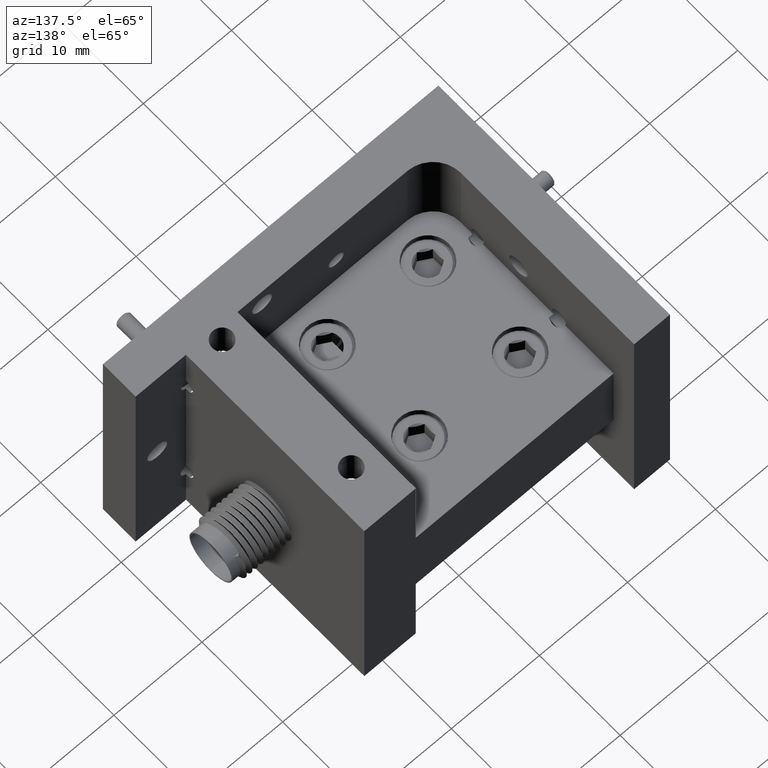
[diagram: clean part render]
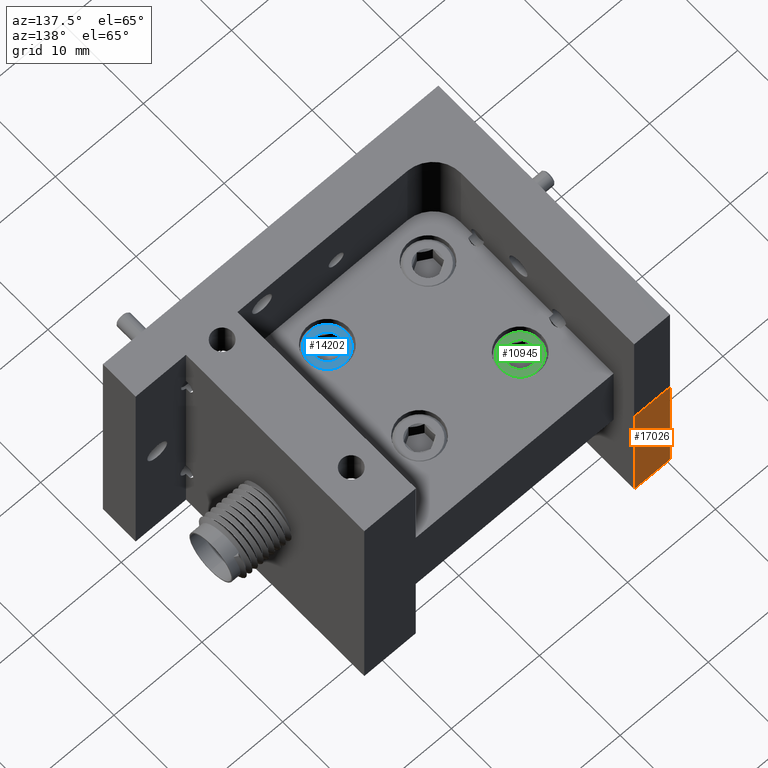
[diagram: same view with three faces highlighted in distinct colors, each labeled with its STEP entity id]
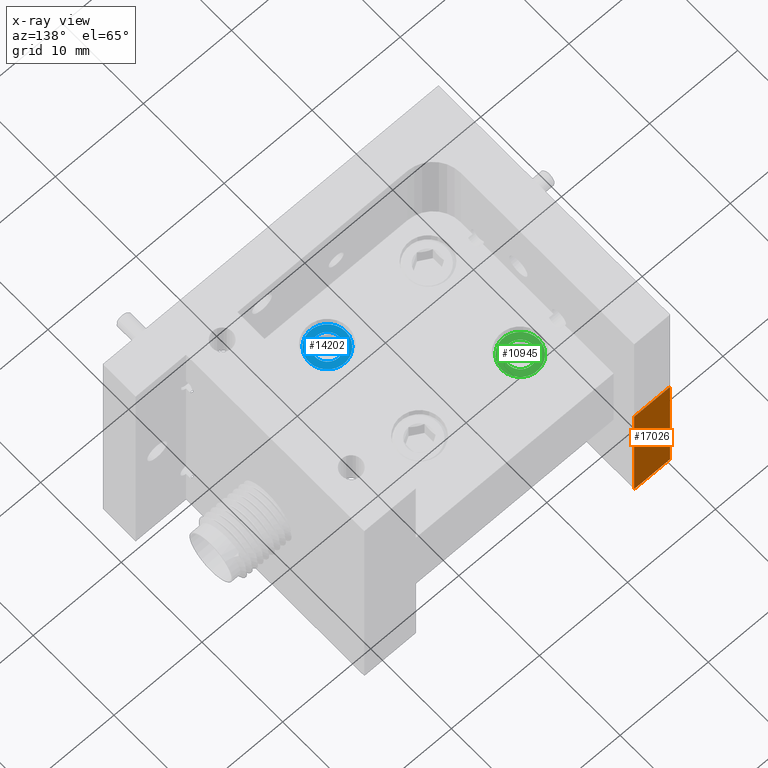
[diagram: x-ray of the same camera — body ghosted, the three highlighted faces saturated]
A machine part, auxiliary view with three faces highlighted in distinct colors.
The next image is the same camera in x-ray (body ghosted, the three faces saturated) — at least one of them is partly hidden behind the body in this view.
Their STEP definitions:

[orange] entity #17026 — the highlighted planar face has unit normal (0, -1, 0).
#613 = ORIENTED_EDGE ( 'NONE', *, *, #17693, .T. ) ;
#712 = ORIENTED_EDGE ( 'NONE', *, *, #8812, .T. ) ;
#1538 = LINE ( 'NONE', #15820, #11156 ) ;
#1667 = CARTESIAN_POINT ( 'NONE',  ( 0.1600000000000000000, 0.5649999999999999500, -0.5649999999999999500 ) ) ;
#1675 = LINE ( 'NONE', #1667, #3570 ) ;
#2042 = DIRECTION ( 'NONE',  ( 0.0000000000000000000, -1.000000000000000000, 0.0000000000000000000 ) ) ;
#2222 = LINE ( 'NONE', #14574, #17602 ) ;
#2614 = CARTESIAN_POINT ( 'NONE',  ( 0.0000000000000000000, 0.5649999999999999500, -0.5649999999999999500 ) ) ;
#2742 = CARTESIAN_POINT ( 'NONE',  ( 0.0000000000000000000, 0.5649999999999999500, 0.0000000000000000000 ) ) ;
#3570 = VECTOR ( 'NONE', #10038, 39.37007874015748100 ) ;
#3769 = DIRECTION ( 'NONE',  ( 0.0000000000000000000, 0.0000000000000000000, 1.000000000000000000 ) ) ;
#4166 = FACE_OUTER_BOUND ( 'NONE', #7511, .T. ) ;
#4492 = ORIENTED_EDGE ( 'NONE', *, *, #14460, .F. ) ;
#4577 = VECTOR ( 'NONE', #10571, 39.37007874015748100 ) ;
#4983 = DIRECTION ( 'NONE',  ( 0.0000000000000000000, -0.0000000000000000000, -1.000000000000000000 ) ) ;
#7158 = LINE ( 'NONE', #13269, #4577 ) ;
#7214 = PLANE ( 'NONE',  #14373 ) ;
#7511 = EDGE_LOOP ( 'NONE', ( #712, #8445, #4492, #613 ) ) ;
#8142 = CARTESIAN_POINT ( 'NONE',  ( 0.1600000000000000000, 0.5649999999999999500, 0.0000000000000000000 ) ) ;
#8290 = VERTEX_POINT ( 'NONE', #2614 ) ;
#8445 = ORIENTED_EDGE ( 'NONE', *, *, #11505, .F. ) ;
#8812 = EDGE_CURVE ( 'NONE', #8290, #14372, #2222, .T. ) ;
#9027 = VERTEX_POINT ( 'NONE', #8142 ) ;
#10038 = DIRECTION ( 'NONE',  ( 0.0000000000000000000, 0.0000000000000000000, 1.000000000000000000 ) ) ;
#10571 = DIRECTION ( 'NONE',  ( -1.000000000000000000, -0.0000000000000000000, -0.0000000000000000000 ) ) ;
#11156 = VECTOR ( 'NONE', #15652, 39.37007874015748100 ) ;
#11505 = EDGE_CURVE ( 'NONE', #9027, #14372, #1538, .T. ) ;
#12924 = CARTESIAN_POINT ( 'NONE',  ( 0.1600000000000000000, 0.5649999999999999500, -0.5649999999999999500 ) ) ;
#13269 = CARTESIAN_POINT ( 'NONE',  ( 0.1600000000000000000, 0.5649999999999999500, -0.5649999999999999500 ) ) ;
#14372 = VERTEX_POINT ( 'NONE', #2742 ) ;
#14373 = AXIS2_PLACEMENT_3D ( 'NONE', #12924, #2042, #4983 ) ;
#14460 = EDGE_CURVE ( 'NONE', #16141, #9027, #1675, .T. ) ;
#14574 = CARTESIAN_POINT ( 'NONE',  ( 0.0000000000000000000, 0.5649999999999999500, -0.5649999999999999500 ) ) ;
#15652 = DIRECTION ( 'NONE',  ( -1.000000000000000000, -0.0000000000000000000, -0.0000000000000000000 ) ) ;
#15820 = CARTESIAN_POINT ( 'NONE',  ( 0.1600000000000000000, 0.5649999999999999500, 0.0000000000000000000 ) ) ;
#16141 = VERTEX_POINT ( 'NONE', #16180 ) ;
#16180 = CARTESIAN_POINT ( 'NONE',  ( 0.1600000000000000000, 0.5649999999999999500, -0.5649999999999999500 ) ) ;
#17026 = ADVANCED_FACE ( 'NONE', ( #4166 ), #7214, .F. ) ;
#17602 = VECTOR ( 'NONE', #3769, 39.37007874015748100 ) ;
#17693 = EDGE_CURVE ( 'NONE', #16141, #8290, #7158, .T. ) ;

[blue] entity #14202 — the highlighted planar face has unit normal (-0, 0, 1).
#1467 = AXIS2_PLACEMENT_3D ( 'NONE', #7515, #10272, #15696 ) ;
#1649 = EDGE_CURVE ( 'NONE', #2693, #6087, #16755, .T. ) ;
#1759 = CIRCLE ( 'NONE', #13148, 0.05412658773652737800 ) ;
#1856 = EDGE_CURVE ( 'NONE', #5025, #6931, #7732, .T. ) ;
#2263 = ORIENTED_EDGE ( 'NONE', *, *, #1856, .T. ) ;
#2537 = VERTEX_POINT ( 'NONE', #13089 ) ;
#2693 = VERTEX_POINT ( 'NONE', #8595 ) ;
#2920 = DIRECTION ( 'NONE',  ( -2.623489575373747400E-031, 6.153879106841502400E-031, 1.000000000000000000 ) ) ;
#2936 = DIRECTION ( 'NONE',  ( 1.000000000000000000, 0.0000000000000000000, 0.0000000000000000000 ) ) ;
#3086 = CARTESIAN_POINT ( 'NONE',  ( 0.7849999999999999200, -0.2499999999999999200, 0.1619999999999999500 ) ) ;
#3259 = ORIENTED_EDGE ( 'NONE', *, *, #17547, .F. ) ;
#3368 = CARTESIAN_POINT ( 'NONE',  ( 0.7849999999999999200, -0.2499999999999999200, 0.1619999999999999500 ) ) ;
#3825 = AXIS2_PLACEMENT_3D ( 'NONE', #13114, #14484, #7401 ) ;
#4067 = DIRECTION ( 'NONE',  ( 1.000000000000000000, 0.0000000000000000000, 2.623489575373747400E-031 ) ) ;
#4383 = CARTESIAN_POINT ( 'NONE',  ( 0.7849999999999999200, -0.2499999999999999200, 0.1619999999999999500 ) ) ;
#4478 = FACE_BOUND ( 'NONE', #16747, .T. ) ;
#5025 = VERTEX_POINT ( 'NONE', #17529 ) ;
#5046 = AXIS2_PLACEMENT_3D ( 'NONE', #3368, #11546, #14234 ) ;
#5945 = EDGE_CURVE ( 'NONE', #14824, #14476, #8158, .T. ) ;
#6087 = VERTEX_POINT ( 'NONE', #10862 ) ;
#6169 = CARTESIAN_POINT ( 'NONE',  ( 0.7849999999999999200, -0.1958734122634725200, 0.1619999999999999500 ) ) ;
#6394 = VERTEX_POINT ( 'NONE', #6169 ) ;
#6698 = ORIENTED_EDGE ( 'NONE', *, *, #6849, .T. ) ;
#6849 = EDGE_CURVE ( 'NONE', #6931, #5025, #13262, .T. ) ;
#6931 = VERTEX_POINT ( 'NONE', #9980 ) ;
#7255 = DIRECTION ( 'NONE',  ( 1.000000000000000000, 0.0000000000000000000, 0.0000000000000000000 ) ) ;
#7401 = DIRECTION ( 'NONE',  ( 1.000000000000000000, 0.0000000000000000000, 0.0000000000000000000 ) ) ;
#7515 = CARTESIAN_POINT ( 'NONE',  ( 0.7849999999999999200, -0.2499999999999999200, 0.1619999999999999500 ) ) ;
#7732 = CIRCLE ( 'NONE', #5046, 0.08235000000000000700 ) ;
#7772 = EDGE_CURVE ( 'NONE', #14476, #2693, #12796, .T. ) ;
#7866 = FACE_OUTER_BOUND ( 'NONE', #14384, .T. ) ;
#7945 = CARTESIAN_POINT ( 'NONE',  ( 0.7849999999999999200, -0.2499999999999999200, 0.1619999999999999500 ) ) ;
#8158 = CIRCLE ( 'NONE', #11489, 0.05412658773652737800 ) ;
#8595 = CARTESIAN_POINT ( 'NONE',  ( 0.8391265877365273700, -0.2499999999999999200, 0.1619999999999999500 ) ) ;
#8730 = DIRECTION ( 'NONE',  ( -2.623489575373747400E-031, 6.153879106841502400E-031, 1.000000000000000000 ) ) ;
#9335 = DIRECTION ( 'NONE',  ( -2.623489575373747400E-031, 6.153879106841502400E-031, 1.000000000000000000 ) ) ;
#9451 = PLANE ( 'NONE',  #13215 ) ;
#9845 = DIRECTION ( 'NONE',  ( 1.000000000000000000, 0.0000000000000000000, 0.0000000000000000000 ) ) ;
#9948 = DIRECTION ( 'NONE',  ( 1.000000000000000000, 0.0000000000000000000, 0.0000000000000000000 ) ) ;
#9980 = CARTESIAN_POINT ( 'NONE',  ( 0.7026500000000000000, -0.2499999999999999200, 0.1619999999999999500 ) ) ;
#10000 = DIRECTION ( 'NONE',  ( -2.623489575373747400E-031, 6.153879106841502400E-031, 1.000000000000000000 ) ) ;
#10231 = CIRCLE ( 'NONE', #3825, 0.05412658773652737800 ) ;
#10268 = ORIENTED_EDGE ( 'NONE', *, *, #1649, .F. ) ;
#10272 = DIRECTION ( 'NONE',  ( -2.623489575373747400E-031, 6.153879106841502400E-031, 1.000000000000000000 ) ) ;
#10417 = CARTESIAN_POINT ( 'NONE',  ( 0.7849999999999999200, -0.3041265877365273400, 0.1619999999999999500 ) ) ;
#10862 = CARTESIAN_POINT ( 'NONE',  ( 0.8318750000000000300, -0.2229367061317362500, 0.1619999999999999500 ) ) ;
#10997 = DIRECTION ( 'NONE',  ( -2.623489575373747400E-031, 6.153879106841502400E-031, 1.000000000000000000 ) ) ;
#11471 = EDGE_CURVE ( 'NONE', #2537, #14824, #1759, .T. ) ;
#11489 = AXIS2_PLACEMENT_3D ( 'NONE', #13687, #10997, #2936 ) ;
#11546 = DIRECTION ( 'NONE',  ( -2.623489575373747400E-031, 6.153879106841502400E-031, 1.000000000000000000 ) ) ;
#11618 = CIRCLE ( 'NONE', #1467, 0.05412658773652737800 ) ;
#12487 = AXIS2_PLACEMENT_3D ( 'NONE', #17283, #9335, #17342 ) ;
#12793 = ORIENTED_EDGE ( 'NONE', *, *, #5945, .F. ) ;
#12796 = CIRCLE ( 'NONE', #12487, 0.05412658773652737800 ) ;
#12850 = CARTESIAN_POINT ( 'NONE',  ( 0.7849999999999999200, -0.2499999999999999200, 0.1619999999999999500 ) ) ;
#12953 = ORIENTED_EDGE ( 'NONE', *, *, #11471, .F. ) ;
#13024 = ORIENTED_EDGE ( 'NONE', *, *, #14626, .F. ) ;
#13089 = CARTESIAN_POINT ( 'NONE',  ( 0.7381249999999999200, -0.2770632938682636200, 0.1619999999999999500 ) ) ;
#13114 = CARTESIAN_POINT ( 'NONE',  ( 0.7849999999999999200, -0.2499999999999999200, 0.1619999999999999500 ) ) ;
#13148 = AXIS2_PLACEMENT_3D ( 'NONE', #12850, #8730, #9948 ) ;
#13215 = AXIS2_PLACEMENT_3D ( 'NONE', #7945, #14931, #4067 ) ;
#13262 = CIRCLE ( 'NONE', #14072, 0.08235000000000000700 ) ;
#13295 = AXIS2_PLACEMENT_3D ( 'NONE', #3086, #2920, #9845 ) ;
#13687 = CARTESIAN_POINT ( 'NONE',  ( 0.7849999999999999200, -0.2499999999999999200, 0.1619999999999999500 ) ) ;
#13969 = CARTESIAN_POINT ( 'NONE',  ( 0.8318750000000000300, -0.2770632938682636200, 0.1619999999999999500 ) ) ;
#14072 = AXIS2_PLACEMENT_3D ( 'NONE', #4383, #10000, #7255 ) ;
#14187 = ORIENTED_EDGE ( 'NONE', *, *, #7772, .F. ) ;
#14202 = ADVANCED_FACE ( 'NONE', ( #7866, #4478 ), #9451, .T. ) ;
#14234 = DIRECTION ( 'NONE',  ( 1.000000000000000000, 0.0000000000000000000, 0.0000000000000000000 ) ) ;
#14384 = EDGE_LOOP ( 'NONE', ( #6698, #2263 ) ) ;
#14476 = VERTEX_POINT ( 'NONE', #13969 ) ;
#14484 = DIRECTION ( 'NONE',  ( -2.623489575373747400E-031, 6.153879106841502400E-031, 1.000000000000000000 ) ) ;
#14626 = EDGE_CURVE ( 'NONE', #6087, #6394, #10231, .T. ) ;
#14824 = VERTEX_POINT ( 'NONE', #10417 ) ;
#14931 = DIRECTION ( 'NONE',  ( -2.623489575373747400E-031, 6.153879106841502400E-031, 1.000000000000000000 ) ) ;
#15696 = DIRECTION ( 'NONE',  ( 1.000000000000000000, 0.0000000000000000000, 0.0000000000000000000 ) ) ;
#16747 = EDGE_LOOP ( 'NONE', ( #13024, #10268, #14187, #12793, #12953, #3259 ) ) ;
#16755 = CIRCLE ( 'NONE', #13295, 0.05412658773652737800 ) ;
#17283 = CARTESIAN_POINT ( 'NONE',  ( 0.7849999999999999200, -0.2499999999999999200, 0.1619999999999999500 ) ) ;
#17342 = DIRECTION ( 'NONE',  ( 1.000000000000000000, 0.0000000000000000000, 0.0000000000000000000 ) ) ;
#17529 = CARTESIAN_POINT ( 'NONE',  ( 0.8673499999999999500, -0.2499999999999999200, 0.1619999999999999500 ) ) ;
#17547 = EDGE_CURVE ( 'NONE', #6394, #2537, #11618, .T. ) ;

[green] entity #10945 — the highlighted planar face has unit normal (0, 0, 1).
#127 = DIRECTION ( 'NONE',  ( 1.000000000000000000, 0.0000000000000000000, 0.0000000000000000000 ) ) ;
#159 = ORIENTED_EDGE ( 'NONE', *, *, #12597, .F. ) ;
#434 = DIRECTION ( 'NONE',  ( 1.000000000000000000, 0.0000000000000000000, 0.0000000000000000000 ) ) ;
#761 = ORIENTED_EDGE ( 'NONE', *, *, #9921, .T. ) ;
#1116 = FACE_BOUND ( 'NONE', #5294, .T. ) ;
#1425 = CARTESIAN_POINT ( 'NONE',  ( 0.2881250000000000800, 0.1729367061317362800, 0.1619999999999999500 ) ) ;
#1443 = DIRECTION ( 'NONE',  ( 1.392825847456395300E-031, 6.994974677407328900E-031, 1.000000000000000000 ) ) ;
#1878 = DIRECTION ( 'NONE',  ( 1.392825847456395300E-031, 6.994974677407328900E-031, 1.000000000000000000 ) ) ;
#1880 = EDGE_LOOP ( 'NONE', ( #761, #8494 ) ) ;
#1958 = VERTEX_POINT ( 'NONE', #16027 ) ;
#2026 = DIRECTION ( 'NONE',  ( 1.000000000000000000, 0.0000000000000000000, 0.0000000000000000000 ) ) ;
#2056 = EDGE_CURVE ( 'NONE', #9821, #5583, #14576, .T. ) ;
#2102 = CARTESIAN_POINT ( 'NONE',  ( 0.3350000000000001300, 0.1999999999999999800, 0.1619999999999999500 ) ) ;
#2156 = DIRECTION ( 'NONE',  ( 1.000000000000000000, 0.0000000000000000000, 0.0000000000000000000 ) ) ;
#2323 = VERTEX_POINT ( 'NONE', #17226 ) ;
#3581 = AXIS2_PLACEMENT_3D ( 'NONE', #7073, #1443, #127 ) ;
#3635 = CARTESIAN_POINT ( 'NONE',  ( 0.3350000000000001300, 0.1999999999999999800, 0.1619999999999999500 ) ) ;
#4086 = DIRECTION ( 'NONE',  ( 1.000000000000000000, 0.0000000000000000000, 0.0000000000000000000 ) ) ;
#4428 = AXIS2_PLACEMENT_3D ( 'NONE', #7366, #10108, #2026 ) ;
#4461 = EDGE_CURVE ( 'NONE', #14194, #11538, #16511, .T. ) ;
#4506 = CIRCLE ( 'NONE', #17256, 0.05412658773652744700 ) ;
#4798 = ORIENTED_EDGE ( 'NONE', *, *, #5674, .F. ) ;
#4827 = VERTEX_POINT ( 'NONE', #7568 ) ;
#5157 = CIRCLE ( 'NONE', #4428, 0.05412658773652744700 ) ;
#5206 = DIRECTION ( 'NONE',  ( 1.000000000000000000, 0.0000000000000000000, 0.0000000000000000000 ) ) ;
#5294 = EDGE_LOOP ( 'NONE', ( #10290, #10173, #159, #9841, #4798, #14586, #12944 ) ) ;
#5472 = DIRECTION ( 'NONE',  ( 1.392825847456395300E-031, 6.994974677407328900E-031, 1.000000000000000000 ) ) ;
#5562 = AXIS2_PLACEMENT_3D ( 'NONE', #2102, #6232, #15779 ) ;
#5583 = VERTEX_POINT ( 'NONE', #17571 ) ;
#5674 = EDGE_CURVE ( 'NONE', #12780, #9821, #5157, .T. ) ;
#5847 = EDGE_CURVE ( 'NONE', #7019, #1958, #15826, .T. ) ;
#5855 = CIRCLE ( 'NONE', #16955, 0.08235000000000000700 ) ;
#6064 = PLANE ( 'NONE',  #5562 ) ;
#6186 = AXIS2_PLACEMENT_3D ( 'NONE', #3635, #9085, #13211 ) ;
#6232 = DIRECTION ( 'NONE',  ( 1.392825847456395700E-031, 6.994974677407328900E-031, 1.000000000000000000 ) ) ;
#6318 = CARTESIAN_POINT ( 'NONE',  ( 0.3350000000000001300, 0.1999999999999999800, 0.1619999999999999500 ) ) ;
#6321 = CIRCLE ( 'NONE', #9536, 0.05412658773652744700 ) ;
#6609 = DIRECTION ( 'NONE',  ( 1.392825847456395300E-031, 6.994974677407328900E-031, 1.000000000000000000 ) ) ;
#6753 = CARTESIAN_POINT ( 'NONE',  ( 0.3891265877365275800, 0.1999999999999999800, 0.1619999999999999500 ) ) ;
#6757 = CARTESIAN_POINT ( 'NONE',  ( 0.3350000000000001300, 0.1999999999999999800, 0.1619999999999999500 ) ) ;
#6920 = FACE_OUTER_BOUND ( 'NONE', #1880, .T. ) ;
#6950 = CIRCLE ( 'NONE', #6186, 0.05412658773652744700 ) ;
#7019 = VERTEX_POINT ( 'NONE', #6753 ) ;
#7073 = CARTESIAN_POINT ( 'NONE',  ( 0.3350000000000001300, 0.1999999999999999800, 0.1619999999999999500 ) ) ;
#7097 = CARTESIAN_POINT ( 'NONE',  ( 0.3350000000000001300, 0.1458734122634725800, 0.1619999999999999500 ) ) ;
#7364 = AXIS2_PLACEMENT_3D ( 'NONE', #10477, #6609, #9116 ) ;
#7366 = CARTESIAN_POINT ( 'NONE',  ( 0.3350000000000001300, 0.1999999999999999800, 0.1619999999999999500 ) ) ;
#7390 = CARTESIAN_POINT ( 'NONE',  ( 0.3350000000000001300, 0.1999999999999999800, 0.1619999999999999500 ) ) ;
#7568 = CARTESIAN_POINT ( 'NONE',  ( 0.2881250000000001300, 0.2270632938682637400, 0.1619999999999999500 ) ) ;
#7684 = CARTESIAN_POINT ( 'NONE',  ( 0.4173500000000001100, 0.1999999999999999800, 0.1619999999999999500 ) ) ;
#8073 = DIRECTION ( 'NONE',  ( 1.392825847456395300E-031, 6.994974677407328900E-031, 1.000000000000000000 ) ) ;
#8494 = ORIENTED_EDGE ( 'NONE', *, *, #4461, .T. ) ;
#8542 = EDGE_CURVE ( 'NONE', #1958, #2323, #6321, .T. ) ;
#8770 = EDGE_CURVE ( 'NONE', #4827, #12780, #6950, .T. ) ;
#8912 = CARTESIAN_POINT ( 'NONE',  ( 0.2526500000000001000, 0.1999999999999999800, 0.1619999999999999500 ) ) ;
#9085 = DIRECTION ( 'NONE',  ( 1.392825847456395300E-031, 6.994974677407328900E-031, 1.000000000000000000 ) ) ;
#9116 = DIRECTION ( 'NONE',  ( 1.000000000000000000, 0.0000000000000000000, 0.0000000000000000000 ) ) ;
#9536 = AXIS2_PLACEMENT_3D ( 'NONE', #7390, #1878, #434 ) ;
#9821 = VERTEX_POINT ( 'NONE', #7097 ) ;
#9841 = ORIENTED_EDGE ( 'NONE', *, *, #2056, .F. ) ;
#9921 = EDGE_CURVE ( 'NONE', #11538, #14194, #5855, .T. ) ;
#10108 = DIRECTION ( 'NONE',  ( 1.392825847456395300E-031, 6.994974677407328900E-031, 1.000000000000000000 ) ) ;
#10173 = ORIENTED_EDGE ( 'NONE', *, *, #5847, .F. ) ;
#10290 = ORIENTED_EDGE ( 'NONE', *, *, #8542, .F. ) ;
#10477 = CARTESIAN_POINT ( 'NONE',  ( 0.3350000000000001300, 0.1999999999999999800, 0.1619999999999999500 ) ) ;
#10568 = DIRECTION ( 'NONE',  ( 1.392825847456395300E-031, 6.994974677407328900E-031, 1.000000000000000000 ) ) ;
#10945 = ADVANCED_FACE ( 'NONE', ( #6920, #1116 ), #6064, .T. ) ;
#11538 = VERTEX_POINT ( 'NONE', #8912 ) ;
#12597 = EDGE_CURVE ( 'NONE', #5583, #7019, #4506, .T. ) ;
#12780 = VERTEX_POINT ( 'NONE', #1425 ) ;
#12922 = CARTESIAN_POINT ( 'NONE',  ( 0.3350000000000001300, 0.1999999999999999800, 0.1619999999999999500 ) ) ;
#12944 = ORIENTED_EDGE ( 'NONE', *, *, #13052, .F. ) ;
#13052 = EDGE_CURVE ( 'NONE', #2323, #4827, #16256, .T. ) ;
#13211 = DIRECTION ( 'NONE',  ( 1.000000000000000000, 0.0000000000000000000, 0.0000000000000000000 ) ) ;
#13233 = AXIS2_PLACEMENT_3D ( 'NONE', #6757, #8073, #5206 ) ;
#14194 = VERTEX_POINT ( 'NONE', #7684 ) ;
#14576 = CIRCLE ( 'NONE', #16030, 0.05412658773652744700 ) ;
#14586 = ORIENTED_EDGE ( 'NONE', *, *, #8770, .F. ) ;
#15767 = DIRECTION ( 'NONE',  ( 1.392825847456395300E-031, 6.994974677407328900E-031, 1.000000000000000000 ) ) ;
#15779 = DIRECTION ( 'NONE',  ( 1.000000000000000000, -1.110223024625156300E-016, -1.392825847456394900E-031 ) ) ;
#15826 = CIRCLE ( 'NONE', #13233, 0.05412658773652744700 ) ;
#16027 = CARTESIAN_POINT ( 'NONE',  ( 0.3818750000000001300, 0.2270632938682636800, 0.1619999999999999500 ) ) ;
#16030 = AXIS2_PLACEMENT_3D ( 'NONE', #17664, #5472, #4086 ) ;
#16064 = DIRECTION ( 'NONE',  ( 1.000000000000000000, 0.0000000000000000000, 0.0000000000000000000 ) ) ;
#16256 = CIRCLE ( 'NONE', #7364, 0.05412658773652744700 ) ;
#16511 = CIRCLE ( 'NONE', #3581, 0.08235000000000000700 ) ;
#16955 = AXIS2_PLACEMENT_3D ( 'NONE', #12922, #15767, #2156 ) ;
#17226 = CARTESIAN_POINT ( 'NONE',  ( 0.3350000000000001300, 0.2541265877365274100, 0.1619999999999999500 ) ) ;
#17256 = AXIS2_PLACEMENT_3D ( 'NONE', #6318, #10568, #16064 ) ;
#17571 = CARTESIAN_POINT ( 'NONE',  ( 0.3818750000000001300, 0.1729367061317362600, 0.1619999999999999500 ) ) ;
#17664 = CARTESIAN_POINT ( 'NONE',  ( 0.3350000000000001300, 0.1999999999999999800, 0.1619999999999999500 ) ) ;